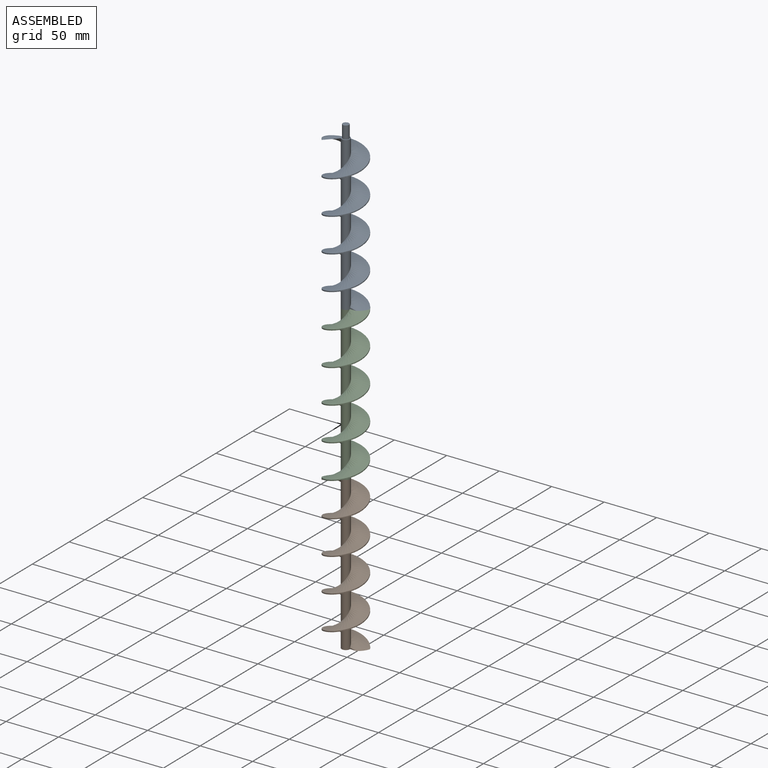
[diagram: assembled view]
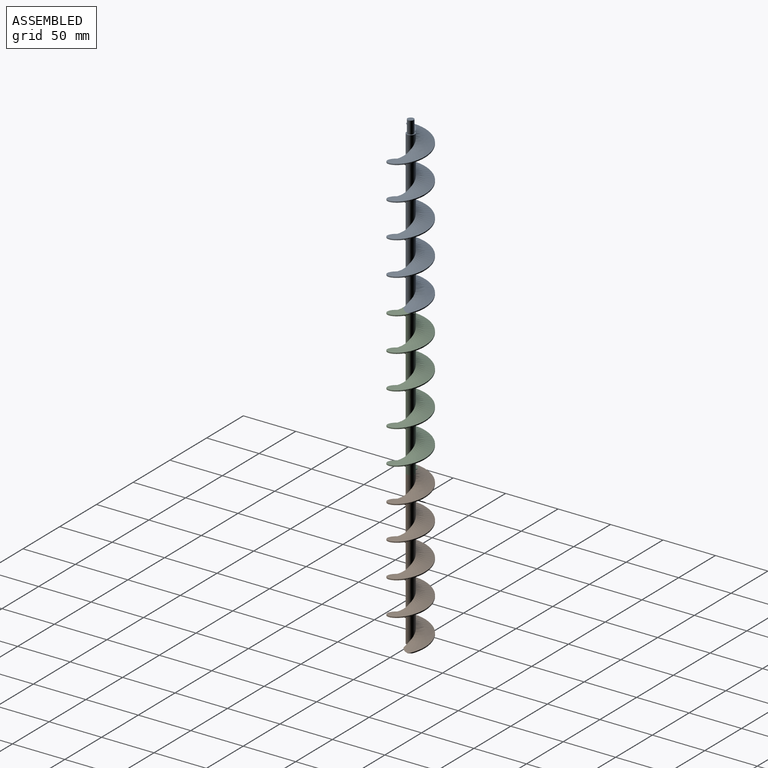
[diagram: assembled view, second angle]
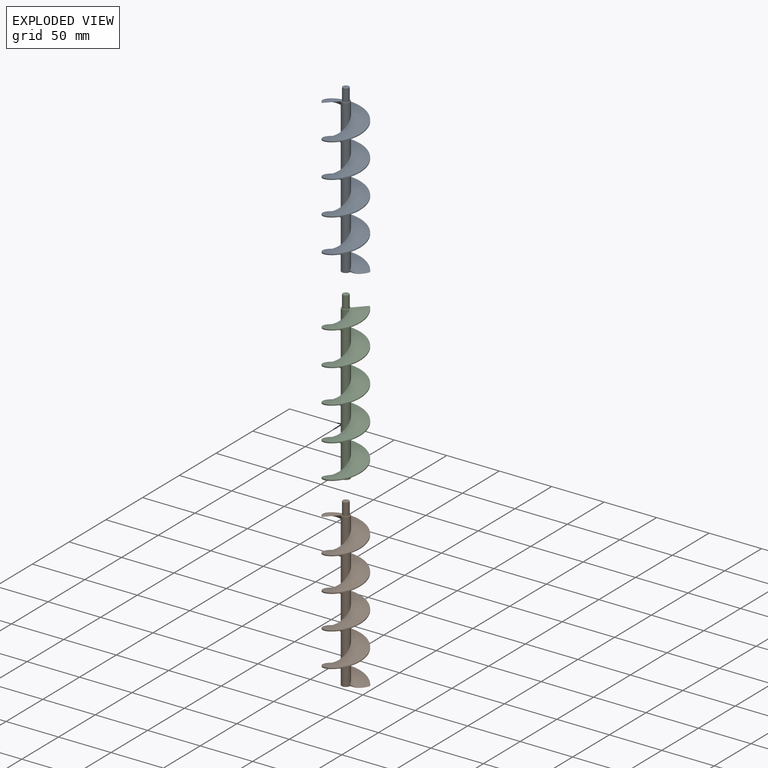
[diagram: exploded view]
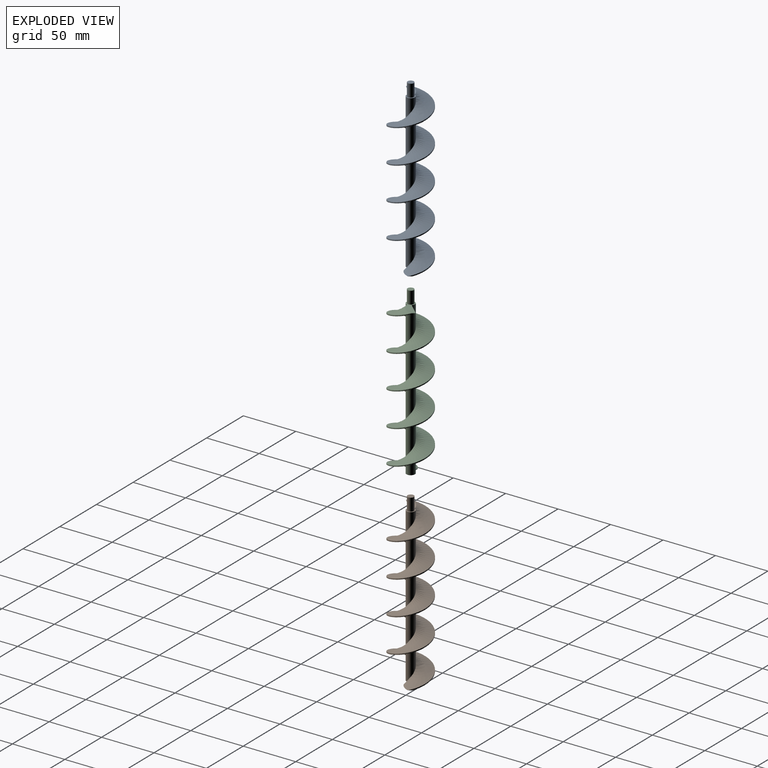
[diagram: exploded view, second angle]
ASSEMBLY  parts=3 mates=2
PART A: 11 faces, bbox 38x38x161 mm
  f0: plane 5.62x1.5mm, normal (0,-1,0), area 4.2mm2, adj f1,f3,f7
  f1: bspline ~155.2x38mm, area 5588.1mm2, adj f0,f3,f4,f6,f7
  f2: bspline ~148.5x38mm, area 5431.6mm2, adj f3,f4,f6,f7
  f3: cylinder r=4mm len=146.5mm, axis (0,0,-1), area 3090.2mm2, adj f0,f1,f2,f6,f7
  f4: cylinder r=19mm len=146.5mm, axis (0,0,1), area 461mm2, adj f1,f2,f6,f7
  f5: cylinder r=3mm len=12mm, axis (0,0,-1), area 226.2mm2, adj f6,f8
  f6: plane 19.45x17.82mm, normal (0,0,1), area 107.7mm2, adj f1,f2,f3,f4,f5
  f7: plane 20.82x15.94mm, normal (0,0,-1), area 103.2mm2, adj f0,f1,f2,f3,f4,f9
  f8: plane 6x6mm, normal (0,0,1), area 28.3mm2, adj f5
  f9: cylinder r=3mm len=15mm, axis (0,0,-1), area 282.7mm2, adj f7,f10
  f10: plane 6x6mm, normal (0,0,-1), area 28.3mm2, adj f9
PART B: same geometry as A
PART C: same geometry as A
PLACE A t=(-163.01,-4.43,307.38)mm
PLACE B t=(-163.01,-4.43,14.38)mm
PLACE C rot(axis=(0,0,1),180deg) t=(-163.01,-4.43,160.88)mm
MATE fastened B.f3 <-> C.f3  axis (0,0,-1) through (-163.01,-4.43,164.38)mm
MATE fastened C.f3 <-> A.f3  axis (0,0,-1) through (-163.01,-4.43,310.88)mm
